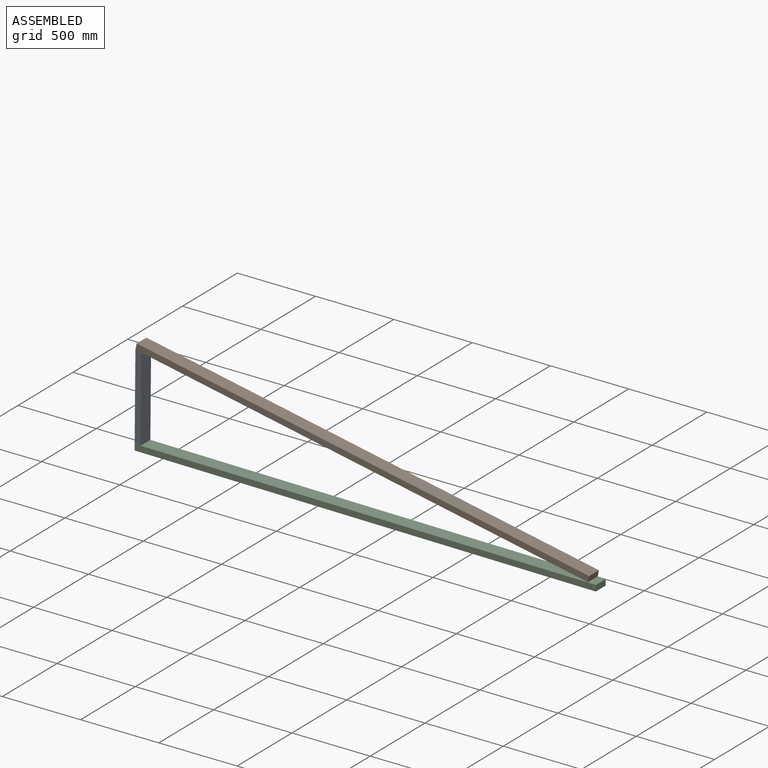
[diagram: assembled view]
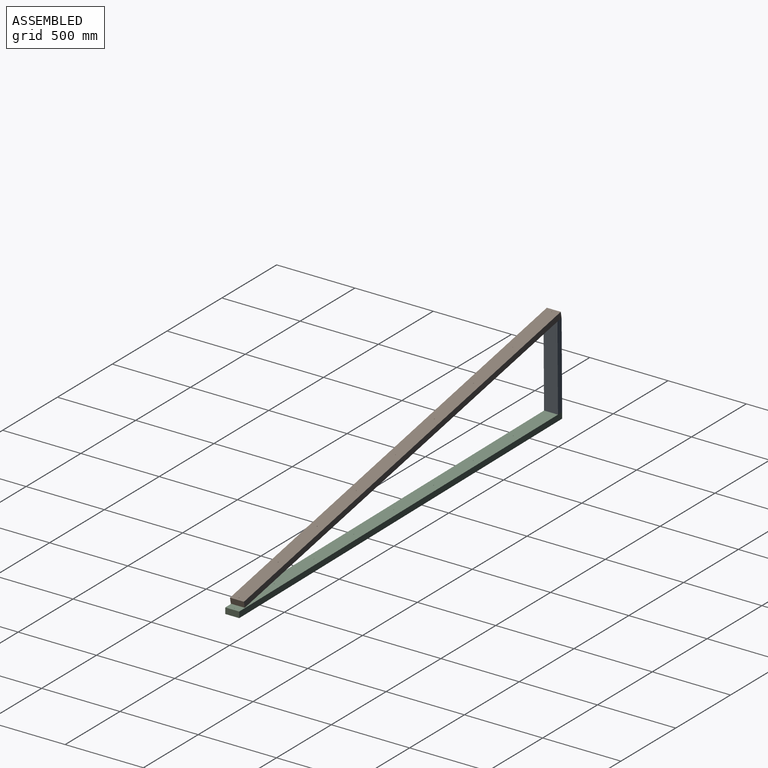
[diagram: assembled view, second angle]
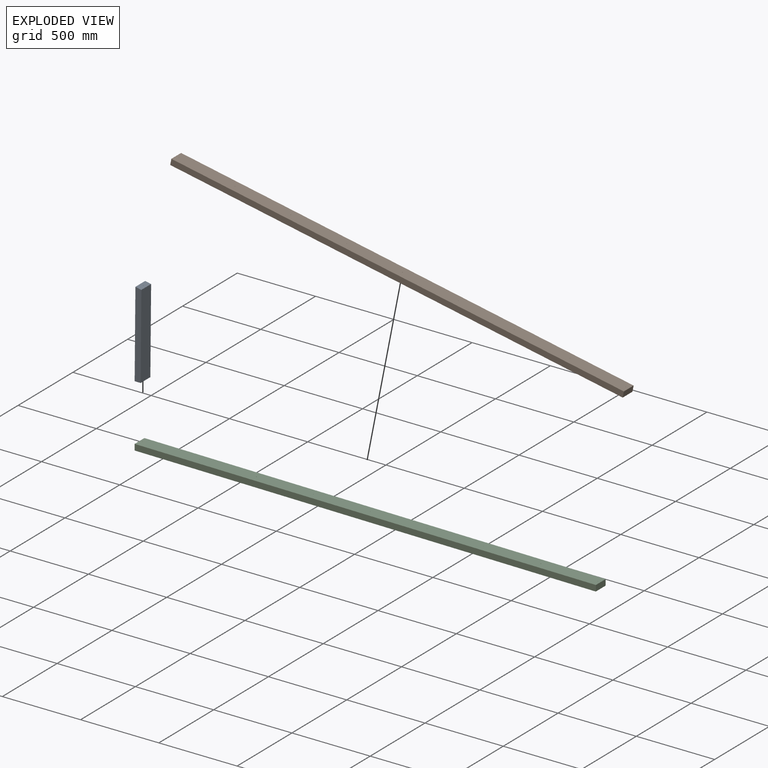
[diagram: exploded view]
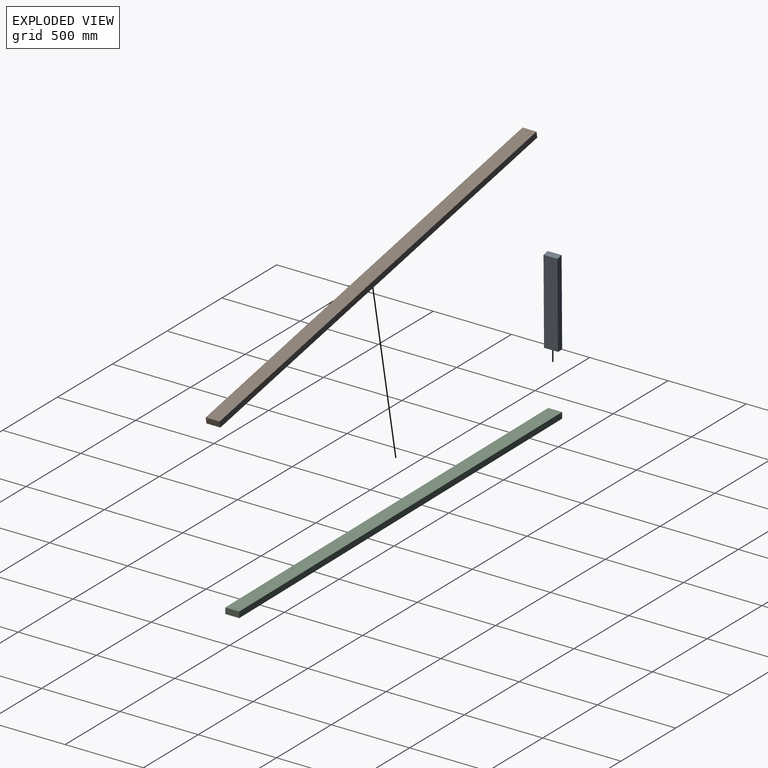
[diagram: exploded view, second angle]
ASSEMBLY  parts=3 mates=2
PART A: 7 faces, bbox 546.2x89x38.2 mm
  f0: plane 546.1x88.9mm, normal (0,0,1), area 48548.3mm2, adj f1,f3,f4,f6
  f1: plane 88.9x38.1mm, normal (-1,0,0), area 3379.2mm2, adj f0,f2,f3,f4,f5
  f2: plane 538.95x88.9mm, normal (0,0,-1), area 47912.2mm2, adj f1,f3,f4,f6
  f3: plane 546.1x38.1mm, normal (0,-1,0), area 20670.1mm2, adj f0,f1,f2,f6
  f4: plane 546.1x38.1mm, normal (0,1,0), area 20670.1mm2, adj f0,f1,f2,f6
  f5: cylinder r=1.59mm len=542.82mm, axis (1,0,0), area 5411.4mm2, adj f1,f6
  f6: plane 89.03x38.23mm, normal (0.98,0,-0.18), area 3438.2mm2, adj f0,f2,f3,f4,f5
PART B: 15 faces, bbox 2946.4x88.9x38.1 mm
  f0: plane 88.9x38.1mm, normal (1,0,0), area 3387.1mm2, adj f1,f3,f4,f5
  f1: plane 2946.4x88.9mm, normal (0,0,1), area 261863.7mm2, adj f0,f2,f4,f5,f6,f7,f8,f9
  f2: plane 88.9x38.1mm, normal (-1,0,0), area 3387.1mm2, adj f1,f3,f4,f5
  f3: plane 2946.4x88.9mm, normal (0,0,-1), area 261863.7mm2, adj f0,f2,f4,f5,f6,f7,f8,f9
  f4: plane 2946.4x38.1mm, normal (0,-1,0), area 112257.8mm2, adj f0,f1,f2,f3
  f5: plane 2946.4x38.1mm, normal (0,1,0), area 112257.8mm2, adj f0,f1,f2,f3
  f6: cylinder r=1.59mm len=38.1mm, axis (0,0,-1), area 380mm2, adj f1,f3
  f7: cylinder r=1.59mm len=38.1mm, axis (0,0,-1), area 380mm2, adj f1,f3
  f8: cylinder r=1.59mm len=38.1mm, axis (0,0,-1), area 380mm2, adj f1,f3
  f9: cylinder r=1.59mm len=38.1mm, axis (0,0,-1), area 380mm2, adj f1,f3
  f10: cylinder r=1.59mm len=38.1mm, axis (0,0,-1), area 380mm2, adj f1,f3
  f11: cylinder r=1.59mm len=38.1mm, axis (0,0,-1), area 380mm2, adj f1,f3
  f12: cylinder r=1.59mm len=38.1mm, axis (0,0,-1), area 380mm2, adj f1,f3
  f13: cylinder r=1.59mm len=38.1mm, axis (0,0,-1), area 380mm2, adj f1,f3
  f14: cylinder r=1.59mm len=38.1mm, axis (0,0,-1), area 380mm2, adj f1,f3
PART C: same geometry as B
PLACE A rot(axis=(0,-1,0),89.5deg) t=(-384.28,90.17,16.14)mm
PLACE B rot(axis=(0,1,0),11.2deg) t=(1048.53,90.17,23.06)mm
PLACE C rot(axis=(0,1,0),0.5deg) t=(1067.19,90.17,-289.02)mm
MATE fastened A.f5 <-> C.f14  axis (-0.01,0,-1) through (-386.73,45.72,-256.9)mm
MATE fastened B.f14 <-> A.f6  axis (-0.19,0,-0.98) through (-381.85,45.72,285.59)mm
